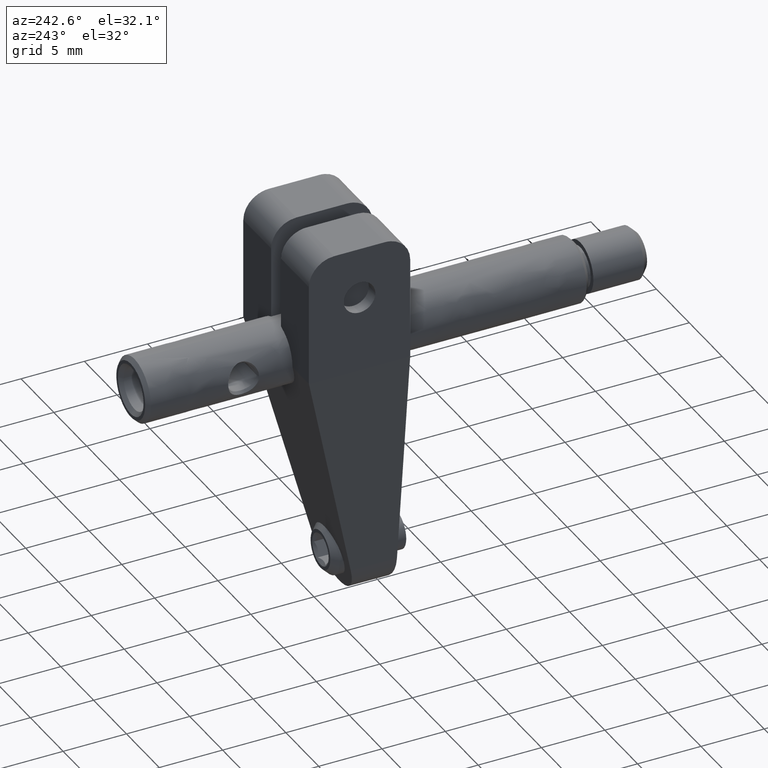
[diagram: clean part render]
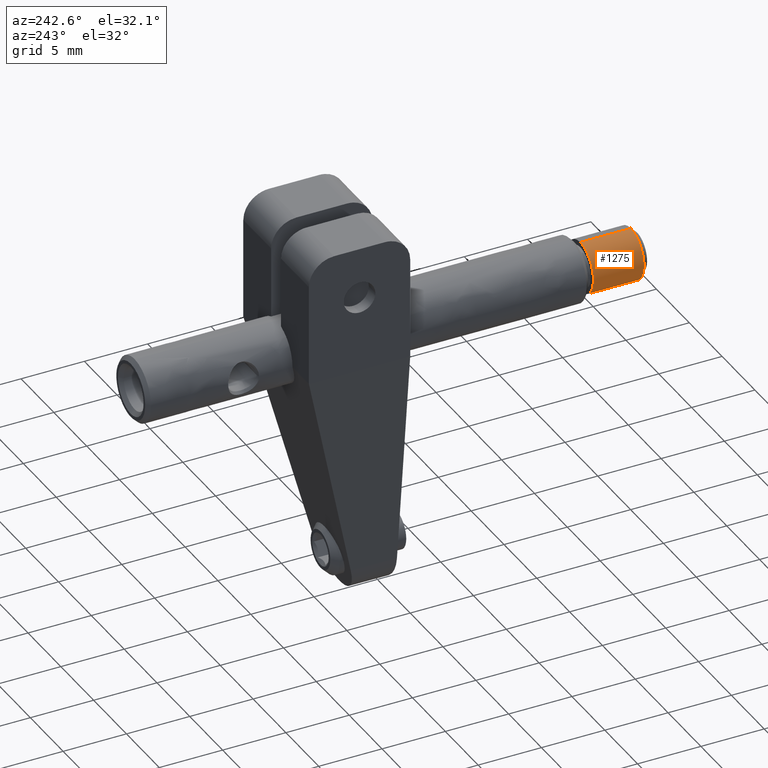
[diagram: same view with one face highlighted and labeled with its STEP entity id]
A machine part, auxiliary view. The second image highlights one B-rep face of the part: STEP entity #1275.
In plain terms, the highlighted face is a freeform B-spline surface patch.
Its self-contained STEP definition (entity closure, byte-faithful):
#76 = ORIENTED_EDGE ( 'NONE', *, *, #6658, .F. ) ;
#111 = CARTESIAN_POINT ( 'NONE',  ( -0.9929202169750097617, -16.02094755358394806, -1.757945117790281619 ) ) ;
#149 = CARTESIAN_POINT ( 'NONE',  ( -4.400811216535724820E-14, -16.02094755358395162, -2.000000000000000000 ) ) ;
#188 = CARTESIAN_POINT ( 'NONE',  ( -0.1271555191035684818, -16.02094755358395872, -2.000000000000000000 ) ) ;
#222 = CARTESIAN_POINT ( 'NONE',  ( -0.7681663651066175102, -16.02094755358395517, 1.846686116601546912 ) ) ;
#249 = CARTESIAN_POINT ( 'NONE',  ( -2.000000000000002665, -15.61974755358394518, 2.000000000000002665 ) ) ;
#435 = B_SPLINE_CURVE_WITH_KNOTS ( 'NONE', 1,
 ( #3117, #5448 ),
 .UNSPECIFIED., .F., .F.,
 ( 2, 2 ),
 ( 0.000000000000000000, 1.000000000000000000 ),
 .UNSPECIFIED. ) ;
#454 = VERTEX_POINT ( 'NONE', #4088 ) ;
#483 = B_SPLINE_CURVE_WITH_KNOTS ( 'NONE', 1,
 ( #3802, #1582 ),
 .UNSPECIFIED., .F., .F.,
 ( 2, 2 ),
 ( 0.000000000000000000, 1.000000000000000000 ),
 .UNSPECIFIED. ) ;
#531 = CARTESIAN_POINT ( 'NONE',  ( -4.375034335883173906E-14, -16.02094755358400135, 2.000000000000000000 ) ) ;
#534 = CARTESIAN_POINT ( 'NONE',  ( -3.326024750837474744E-14, -20.02094755358395162, -2.000000000000000000 ) ) ;
#728 = CARTESIAN_POINT ( 'NONE',  ( -0.7065943581191470590, -16.02094755358395162, -1.871095708981810324 ) ) ;
#762 = CARTESIAN_POINT ( 'NONE',  ( -1.982451008791958236, -16.02094755358395517, 0.3145358993514816848 ) ) ;
#1223 = CARTESIAN_POINT ( 'NONE',  ( -1.833247278710690820, -16.02094755358395162, -0.7997827362492336833 ) ) ;
#1261 = CARTESIAN_POINT ( 'NONE',  ( -1.853725908234982622, -16.02094755358395517, -0.7509671134443538509 ) ) ;
#1275 = ADVANCED_FACE ( 'NONE', ( #4629 ), #6501, .T. ) ;
#1299 = CARTESIAN_POINT ( 'NONE',  ( -1.999995504541316249, -16.02094755358394806, -0.2542996822411568436 ) ) ;
#1366 = ORIENTED_EDGE ( 'NONE', *, *, #6138, .F. ) ;
#1396 = CARTESIAN_POINT ( 'NONE',  ( 2.000000000000000000, -15.61974755358395051, -1.825074443429240165E-15 ) ) ;
#1547 = CARTESIAN_POINT ( 'NONE',  ( -2.000000000000000000, -20.02094755358395162, -2.150306599606035221E-15 ) ) ;
#1575 = CARTESIAN_POINT ( 'NONE',  ( 1.519364344342485183E-16, -20.02094755358395162, 2.000000000000000000 ) ) ;
#1582 = CARTESIAN_POINT ( 'NONE',  ( -4.400811216535724820E-14, -16.02094755358395162, -2.000000000000000000 ) ) ;
#1592 = CARTESIAN_POINT ( 'NONE',  ( -1.812540669506552904, -16.02094755358395517, -0.8468467181232278707 ) ) ;
#1629 = CARTESIAN_POINT ( 'NONE',  ( -1.953187704362984389, -16.02094755358395162, -0.4997463099940237519 ) ) ;
#1759 = CARTESIAN_POINT ( 'NONE',  ( -1.609452557102835080, -16.02094755358395162, 1.218966480411237452 ) ) ;
#1794 = CARTESIAN_POINT ( 'NONE',  ( -0.3145458358217139150, -16.02094755358395517, -1.982447075265608927 ) ) ;
#1820 = CARTESIAN_POINT ( 'NONE',  ( -5.344371378308890730E-16, -20.42214755358394740, -2.000000000000000000 ) ) ;
#1830 = CARTESIAN_POINT ( 'NONE',  ( -1.757945117797178103, -16.02094755358395517, 0.9929202169681170531 ) ) ;
#1856 = CARTESIAN_POINT ( 'NONE',  ( 2.000000000000002665, -15.61974755358394518, -2.000000000000005773 ) ) ;
#1860 = VERTEX_POINT ( 'NONE', #6613 ) ;
#1931 = CARTESIAN_POINT ( 'NONE',  ( -2.000000000000000000, -15.61974755358395051, -1.580145083599769868E-15 ) ) ;
#2160 = CARTESIAN_POINT ( 'NONE',  ( -1.897975345899124644, -16.02094755358395162, 0.6322367219400405469 ) ) ;
#2178 = CARTESIAN_POINT ( 'NONE',  ( -2.000000000000003109, -20.02094755358397293, 2.000000000000020428 ) ) ;
#2293 = CARTESIAN_POINT ( 'NONE',  ( -0.7997827362494084324, -16.02094755358395517, 1.833247278710519179 ) ) ;
#2333 = CARTESIAN_POINT ( 'NONE',  ( -2.000002247729342209, -16.02094755358395162, 0.1271498411205794765 ) ) ;
#2360 = CARTESIAN_POINT ( 'NONE',  ( -3.586899730233874645E-17, -15.61974755358395051, 2.000000000000000000 ) ) ;
#2363 = ORIENTED_EDGE ( 'NONE', *, *, #4874, .F. ) ;
#2370 = CARTESIAN_POINT ( 'NONE',  ( -1.760386781456194427, -16.02094755358395162, -0.9541386519487228268 ) ) ;
#2406 = CARTESIAN_POINT ( 'NONE',  ( -4.375034335883173906E-14, -16.02094755358400135, 2.000000000000000000 ) ) ;
#2415 =( BOUNDED_CURVE ( )  B_SPLINE_CURVE ( 2, ( #534, #5454, #1547, #2178, #1575 ),
 .UNSPECIFIED., .F., .T. ) 
 B_SPLINE_CURVE_WITH_KNOTS ( ( 3, 2, 3 ),
 ( 0.000000000000000000, 0.4999999999999990008, 1.000000000000000000 ),
 .UNSPECIFIED. ) 
 CURVE ( )  GEOMETRIC_REPRESENTATION_ITEM ( )  RATIONAL_B_SPLINE_CURVE ( ( 0.9999999999999849010, 0.7071067811865631159, 1.000000000000000000, 0.7071067811865457964, 1.000000000000001998 ) ) 
 REPRESENTATION_ITEM ( '' )  );
#2421 = CARTESIAN_POINT ( 'NONE',  ( -4.400811216535724820E-14, -16.02094755358395162, -2.000000000000000000 ) ) ;
#2424 = VERTEX_POINT ( 'NONE', #2421 ) ;
#2436 = CARTESIAN_POINT ( 'NONE',  ( 2.000000000000000000, -20.42214755358394740, -2.447210148343465220E-15 ) ) ;
#2653 = B_SPLINE_CURVE_WITH_KNOTS ( 'NONE', 3,
 ( #149, #188, #1794, #3781, #5979, #5032, #728, #6181, #111, #3369, #3482, #4023, #2370, #1592, #1223, #2868, #1261, #1629, #1299, #2333, #762, #6751, #2160, #3946, #4568, #6678, #1830, #1759, #2946, #6545, #4349, #5146, #2293, #222, #3815, #6143, #3444, #2406 ),
 .UNSPECIFIED., .F., .F.,
 ( 4, 1, 1, 1, 2, 2, 2, 1, 1, 1, 2, 2, 2, 1, 1, 1, 2, 2, 2, 1, 1, 1, 2, 2, 4 ),
 ( 0.000000000000000000, 0.06249999999999986122, 0.09374999999999981959, 0.1093749999999998335, 0.1171874999999998196, 0.1249999999999998057, 0.2499999999999998335, 0.3124999999999998335, 0.3437499999999998890, 0.3593750000000000000, 0.3671875000000000000, 0.3750000000000000555, 0.4999999999999995559, 0.5624999999999993339, 0.5937499999999991118, 0.6093749999999991118, 0.6171874999999991118, 0.6249999999999990008, 0.7499999999999992228, 0.8124999999999993339, 0.8437499999999993339, 0.8593749999999993339, 0.8671874999999993339, 0.8749999999999992228, 1.000000000000000000 ),
 .UNSPECIFIED. ) ;
#2868 = CARTESIAN_POINT ( 'NONE',  ( -1.846686116601637728, -16.02094755358395517, -0.7681663651065250287 ) ) ;
#2946 = CARTESIAN_POINT ( 'NONE',  ( -1.316594065008233283, -16.02094755358395517, 1.511837103354029654 ) ) ;
#3095 = VERTEX_POINT ( 'NONE', #531 ) ;
#3117 = CARTESIAN_POINT ( 'NONE',  ( -4.375034335883173906E-14, -16.02094755358400135, 2.000000000000000000 ) ) ;
#3369 = CARTESIAN_POINT ( 'NONE',  ( -1.218966480410487163, -16.02094755358395162, -1.609452557103577597 ) ) ;
#3444 = CARTESIAN_POINT ( 'NONE',  ( -0.2543384800758637376, -16.02094755358394806, 2.000000000000000000 ) ) ;
#3482 = CARTESIAN_POINT ( 'NONE',  ( -1.511837103354401357, -16.02094755358395162, -1.316594065007855363 ) ) ;
#3514 = EDGE_CURVE ( 'NONE', #1860, #454, #2415, .T. ) ;
#3781 = CARTESIAN_POINT ( 'NONE',  ( -0.5273176886027689525, -16.02094755358395517, -1.931251044790297522 ) ) ;
#3802 = CARTESIAN_POINT ( 'NONE',  ( -3.326024750837474744E-14, -20.02094755358395162, -2.000000000000000000 ) ) ;
#3815 = CARTESIAN_POINT ( 'NONE',  ( -0.7509678232491627803, -16.02094755358395162, 1.853725627213401284 ) ) ;
#3946 = CARTESIAN_POINT ( 'NONE',  ( -1.882067323003548953, -16.02094755358395162, 0.6768922123587270967 ) ) ;
#3974 = CARTESIAN_POINT ( 'NONE',  ( 2.000000000000000000, -15.61974755358395051, -1.825074443429240165E-15 ) ) ;
#4023 = CARTESIAN_POINT ( 'NONE',  ( -1.640725139059350912, -16.02094755358395872, -1.158626424077755734 ) ) ;
#4087 = CARTESIAN_POINT ( 'NONE',  ( 2.000000000000002665, -20.42214755358397582, -2.000000000000005773 ) ) ;
#4088 = CARTESIAN_POINT ( 'NONE',  ( 1.519364344342485183E-16, -20.02094755358395162, 2.000000000000000000 ) ) ;
#4125 = CARTESIAN_POINT ( 'NONE',  ( -2.000000000000000000, -20.42214755358394740, -2.202280788513995318E-15 ) ) ;
#4196 = ORIENTED_EDGE ( 'NONE', *, *, #3514, .T. ) ;
#4349 = CARTESIAN_POINT ( 'NONE',  ( -0.9541386519492166540, -16.02094755358395517, 1.760386781455706373 ) ) ;
#4555 = CARTESIAN_POINT ( 'NONE',  ( -2.000000000000002665, -20.42214755358397582, 2.000000000000000000 ) ) ;
#4568 = CARTESIAN_POINT ( 'NONE',  ( -1.871096253353760952, -16.02094755358395162, 0.7065929829826431696 ) ) ;
#4593 = CARTESIAN_POINT ( 'NONE',  ( -2.000000000000002665, -20.42214755358397582, -2.000000000000005773 ) ) ;
#4629 = FACE_OUTER_BOUND ( 'NONE', #4992, .T. ) ;
#4874 = EDGE_CURVE ( 'NONE', #1860, #2424, #483, .T. ) ;
#4992 = EDGE_LOOP ( 'NONE', ( #4196, #76, #1366, #2363 ) ) ;
#5032 = CARTESIAN_POINT ( 'NONE',  ( -0.6768948295540101467, -16.02094755358395517, -1.882066286940805355 ) ) ;
#5146 = CARTESIAN_POINT ( 'NONE',  ( -0.8468467181235163066, -16.02094755358395517, 1.812540669506266688 ) ) ;
#5448 = CARTESIAN_POINT ( 'NONE',  ( 1.519364344342485183E-16, -20.02094755358395162, 2.000000000000000000 ) ) ;
#5454 = CARTESIAN_POINT ( 'NONE',  ( -2.000000000000002665, -20.02094755358397293, -1.999999999999859890 ) ) ;
#5634 = CARTESIAN_POINT ( 'NONE',  ( 2.000000000000000000, -20.42214755358394740, -2.447210148343465220E-15 ) ) ;
#5979 = CARTESIAN_POINT ( 'NONE',  ( -0.6322410691457670540, -16.02094755358395517, -1.897973624981347696 ) ) ;
#6138 = EDGE_CURVE ( 'NONE', #2424, #3095, #2653, .T. ) ;
#6143 = CARTESIAN_POINT ( 'NONE',  ( -0.4997349531171144665, -16.02094755358394806, 1.953192200708287585 ) ) ;
#6181 = CARTESIAN_POINT ( 'NONE',  ( -0.7201437442580418402, -16.02094755358394806, -1.865928569895775935 ) ) ;
#6283 = CARTESIAN_POINT ( 'NONE',  ( 2.000000000000002665, -15.61974755358394518, 2.000000000000000000 ) ) ;
#6316 = CARTESIAN_POINT ( 'NONE',  ( -5.257277169612810524E-16, -15.61974755358395051, -2.000000000000000000 ) ) ;
#6501 =( BOUNDED_SURFACE ( )  B_SPLINE_SURFACE ( 2, 1, ( 
 ( #3974, #5634 ),
 ( #6283, #6781 ),
 ( #2360, #6819 ),
 ( #249, #4555 ),
 ( #1931, #4125 ),
 ( #6742, #4593 ),
 ( #6316, #1820 ),
 ( #1856, #4087 ),
 ( #1396, #2436 ) ),
 .UNSPECIFIED., .T., .F., .F. ) 
 B_SPLINE_SURFACE_WITH_KNOTS ( ( 3, 2, 2, 2, 3 ),
 ( 2, 2 ),
 ( 0.000000000000000000, 1.570796326794895004, 3.141592653589795336, 4.712388980384689674, 6.283185307179590673 ),
 ( 0.000000000000000000, 4.802399999999999558 ),
 .UNSPECIFIED. ) 
 GEOMETRIC_REPRESENTATION_ITEM ( )  RATIONAL_B_SPLINE_SURFACE ( (
 ( 1.000000000000000000, 1.000000000000000000),
 ( 0.7071067811865480168, 0.7071067811865480168),
 ( 1.000000000000000000, 1.000000000000000000),
 ( 0.7071067811865480168, 0.7071067811865480168),
 ( 1.000000000000000000, 1.000000000000000000),
 ( 0.7071067811865480168, 0.7071067811865480168),
 ( 1.000000000000000000, 1.000000000000000000),
 ( 0.7071067811865480168, 0.7071067811865480168),
 ( 1.000000000000000000, 1.000000000000000000) ) ) 
 REPRESENTATION_ITEM ( '' )  SURFACE ( )  );
#6545 = CARTESIAN_POINT ( 'NONE',  ( -1.158626424078412764, -16.02094755358395517, 1.640725139058698989 ) ) ;
#6613 = CARTESIAN_POINT ( 'NONE',  ( -3.326024750837474744E-14, -20.02094755358395162, -2.000000000000000000 ) ) ;
#6658 = EDGE_CURVE ( 'NONE', #3095, #454, #435, .T. ) ;
#6678 = CARTESIAN_POINT ( 'NONE',  ( -1.865928569895345612, -16.02094755358395162, 0.7201437442584741611 ) ) ;
#6742 = CARTESIAN_POINT ( 'NONE',  ( -2.000000000000002665, -15.61974755358394518, -2.000000000000005773 ) ) ;
#6751 = CARTESIAN_POINT ( 'NONE',  ( -1.931253994935060225, -16.02094755358395517, 0.5273102362500952101 ) ) ;
#6781 = CARTESIAN_POINT ( 'NONE',  ( 2.000000000000002665, -20.42214755358397582, 2.000000000000000000 ) ) ;
#6819 = CARTESIAN_POINT ( 'NONE',  ( -4.457841817194604599E-17, -20.42214755358394740, 2.000000000000000000 ) ) ;